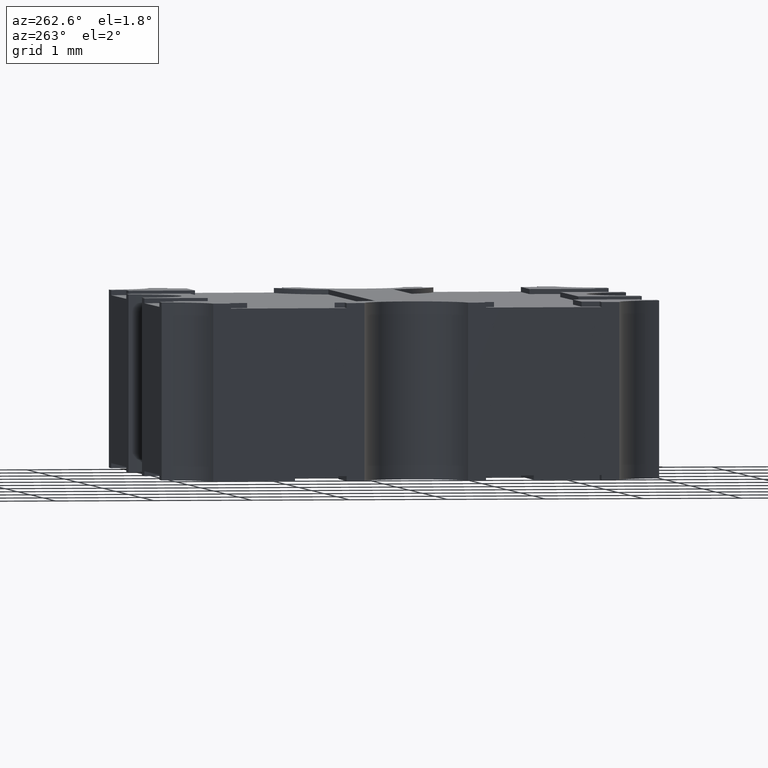
[diagram: clean part render]
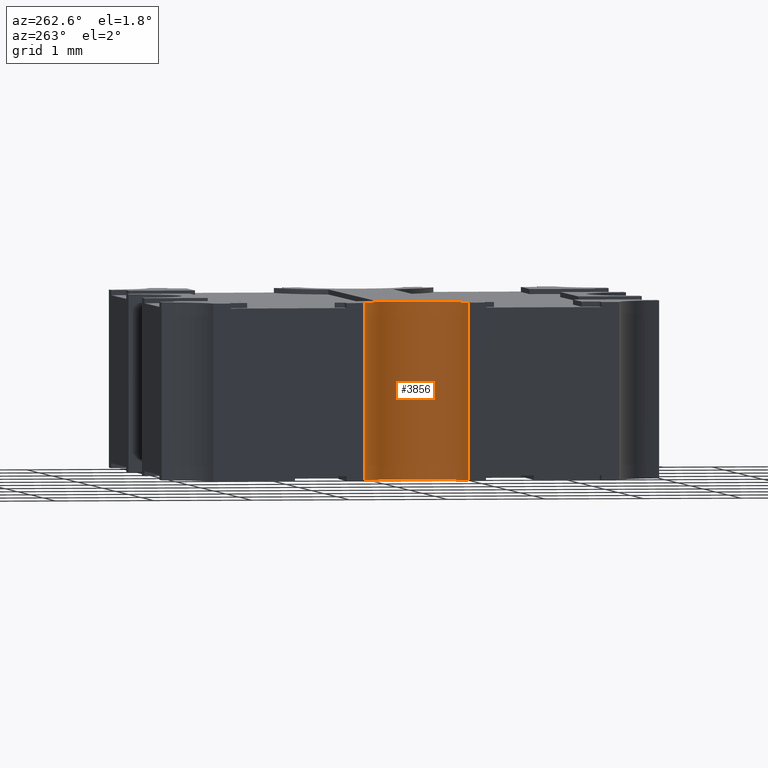
[diagram: same view with one face highlighted and labeled with its STEP entity id]
A machine part, auxiliary view. The second image highlights one B-rep face of the part: STEP entity #3856.
In plain terms, the highlighted cylindrical surface (partial cylindrical patch) has radius 0.5334 mm, axis along (-0, -0, -1).
Its self-contained STEP definition (entity closure, byte-faithful):
#73 = DIRECTION ( 'NONE',  ( -1.000000000000000000, 0.000000000000000000, 0.000000000000000000 ) ) ;
#175 = AXIS2_PLACEMENT_3D ( 'NONE', #3137, #965, #2837 ) ;
#228 = VERTEX_POINT ( 'NONE', #1116 ) ;
#245 = CARTESIAN_POINT ( 'NONE',  ( -0.1000000000000005884, 0.02085065946191258512, 0.000000000000000000 ) ) ;
#315 = VERTEX_POINT ( 'NONE', #245 ) ;
#316 = CYLINDRICAL_SURFACE ( 'NONE', #3722, 0.02100000000000001171 ) ;
#377 = ORIENTED_EDGE ( 'NONE', *, *, #1553, .T. ) ;
#379 = CARTESIAN_POINT ( 'NONE',  ( -0.1024999999999996469, -8.057671027562545834E-14, 0.002000000000000000042 ) ) ;
#427 = EDGE_CURVE ( 'NONE', #2960, #315, #2753, .T. ) ;
#588 = CARTESIAN_POINT ( 'NONE',  ( -0.1000000000000005884, -0.02085065946207373400, 0.002000000000000000042 ) ) ;
#603 = DIRECTION ( 'NONE',  ( -0.000000000000000000, -0.000000000000000000, -1.000000000000000000 ) ) ;
#697 = AXIS2_PLACEMENT_3D ( 'NONE', #2913, #2634, #3499 ) ;
#910 = CARTESIAN_POINT ( 'NONE',  ( -0.1000000000000006023, -0.02085065946207373747, 0.07099999999999997979 ) ) ;
#919 = ORIENTED_EDGE ( 'NONE', *, *, #3023, .F. ) ;
#965 = DIRECTION ( 'NONE',  ( -0.000000000000000000, -0.000000000000000000, -1.000000000000000000 ) ) ;
#968 = CARTESIAN_POINT ( 'NONE',  ( -0.1000000000000005884, 0.02085065946191258512, 0.002000000000000000042 ) ) ;
#983 = FACE_OUTER_BOUND ( 'NONE', #3497, .T. ) ;
#1091 = ORIENTED_EDGE ( 'NONE', *, *, #1674, .T. ) ;
#1116 = CARTESIAN_POINT ( 'NONE',  ( -0.1000000000000005884, -0.02085065946207373400, 0.000000000000000000 ) ) ;
#1373 = VECTOR ( 'NONE', #603, 39.37007874015748143 ) ;
#1480 = ORIENTED_EDGE ( 'NONE', *, *, #427, .T. ) ;
#1553 = EDGE_CURVE ( 'NONE', #315, #228, #3642, .T. ) ;
#1618 = DIRECTION ( 'NONE',  ( -0.000000000000000000, -0.000000000000000000, -1.000000000000000000 ) ) ;
#1674 = EDGE_CURVE ( 'NONE', #2592, #2960, #2419, .T. ) ;
#2419 = CIRCLE ( 'NONE', #697, 0.02100000000000001171 ) ;
#2592 = VERTEX_POINT ( 'NONE', #910 ) ;
#2607 = VECTOR ( 'NONE', #2825, 39.37007874015748143 ) ;
#2634 = DIRECTION ( 'NONE',  ( 0.000000000000000000, 0.000000000000000000, 1.000000000000000000 ) ) ;
#2753 = LINE ( 'NONE', #968, #1373 ) ;
#2825 = DIRECTION ( 'NONE',  ( -0.000000000000000000, -0.000000000000000000, -1.000000000000000000 ) ) ;
#2837 = DIRECTION ( 'NONE',  ( 1.000000000000000000, 0.000000000000000000, 0.000000000000000000 ) ) ;
#2913 = CARTESIAN_POINT ( 'NONE',  ( -0.1024999999999996469, -8.057671027562545834E-14, 0.07099999999999997979 ) ) ;
#2960 = VERTEX_POINT ( 'NONE', #3020 ) ;
#3020 = CARTESIAN_POINT ( 'NONE',  ( -0.1000000000000006023, 0.02085065946191258165, 0.07099999999999997979 ) ) ;
#3023 = EDGE_CURVE ( 'NONE', #2592, #228, #3341, .T. ) ;
#3137 = CARTESIAN_POINT ( 'NONE',  ( -0.1024999999999996469, -8.057671027562545834E-14, 0.000000000000000000 ) ) ;
#3341 = LINE ( 'NONE', #588, #2607 ) ;
#3497 = EDGE_LOOP ( 'NONE', ( #377, #919, #1091, #1480 ) ) ;
#3499 = DIRECTION ( 'NONE',  ( 1.000000000000000000, 0.000000000000000000, 0.000000000000000000 ) ) ;
#3642 = CIRCLE ( 'NONE', #175, 0.02100000000000001171 ) ;
#3722 = AXIS2_PLACEMENT_3D ( 'NONE', #379, #1618, #73 ) ;
#3856 = ADVANCED_FACE ( 'NONE', ( #983 ), #316, .F. ) ;